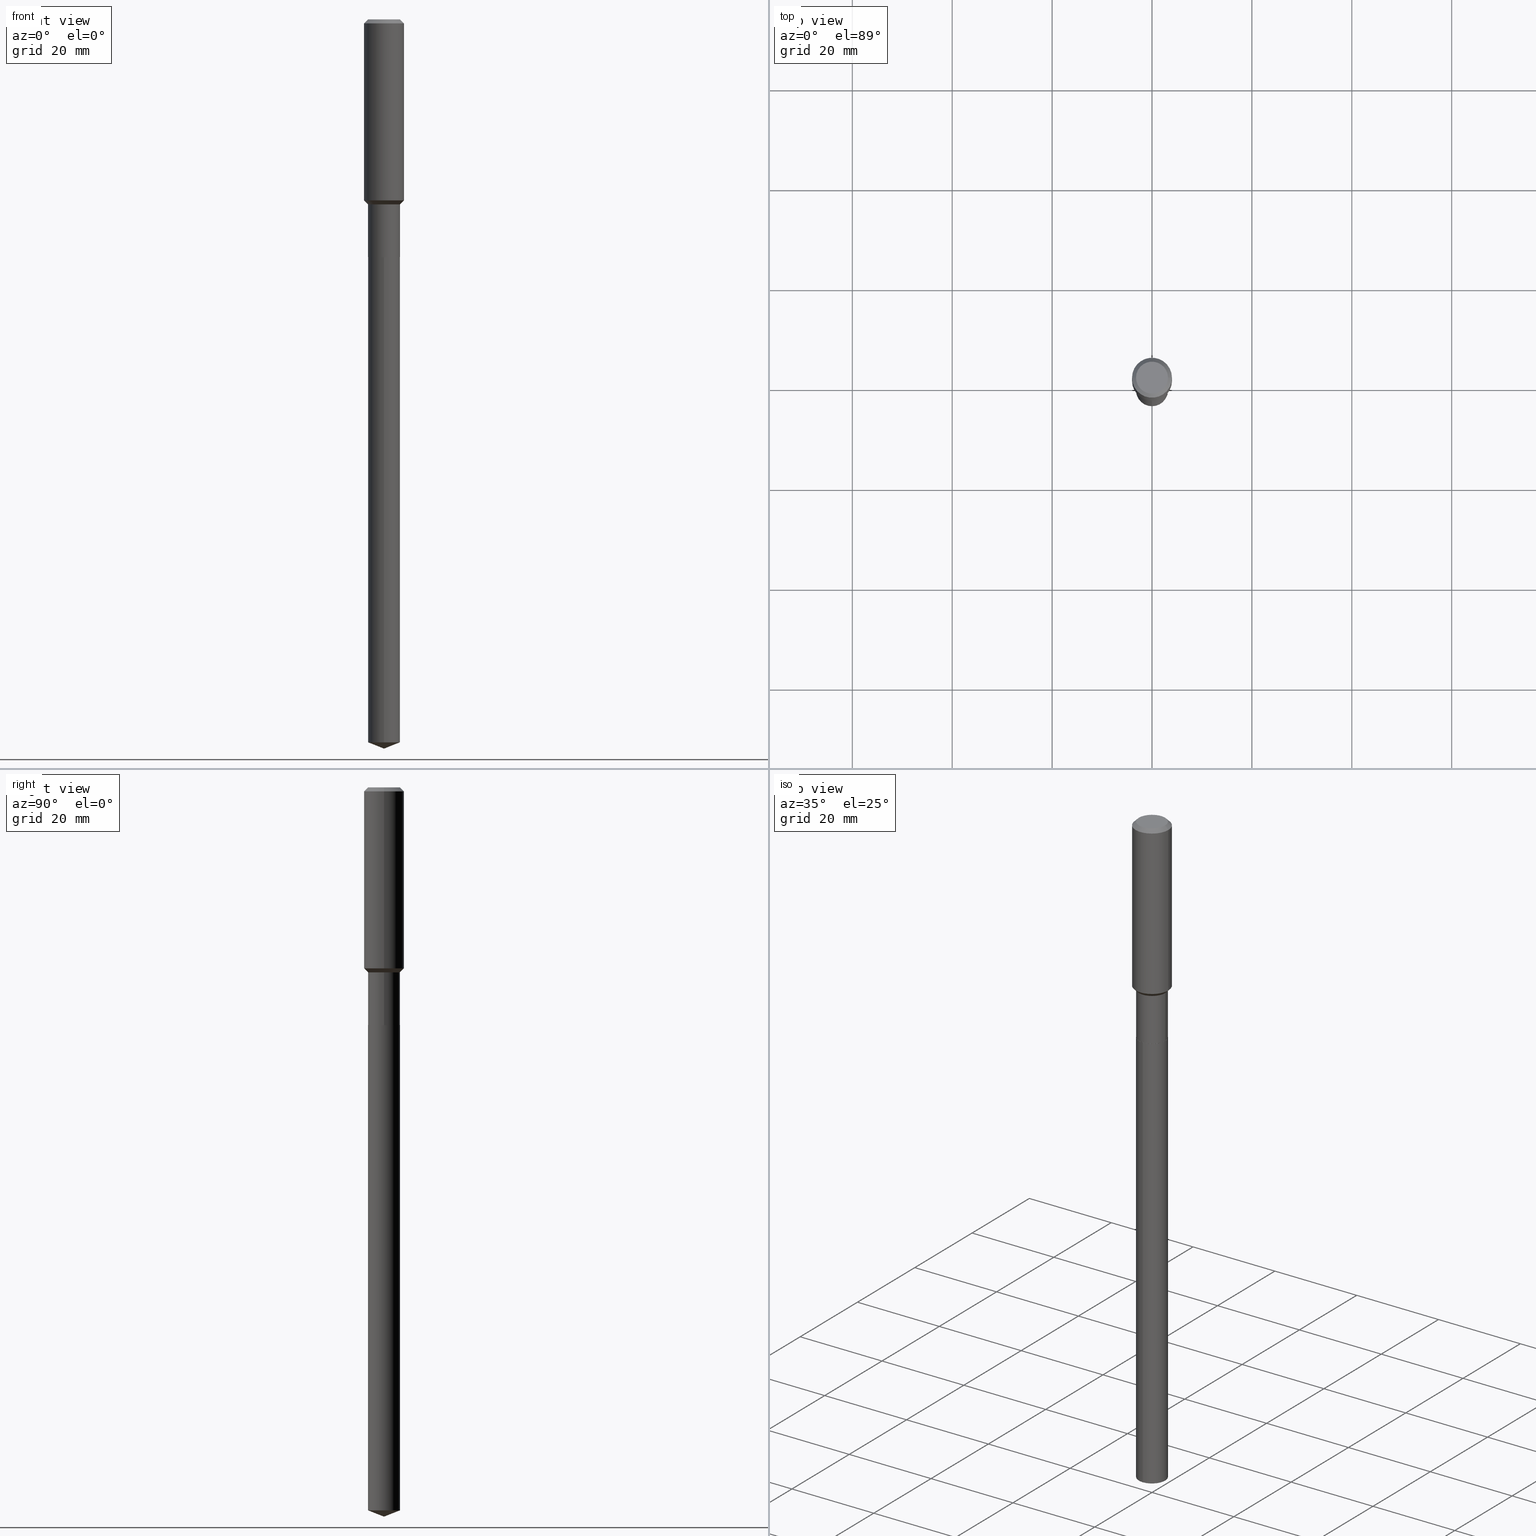
[diagram: canonical four-view strip — front | top / right | iso, engineering-drawing reading convention]
A machine part, canonical four-view strip (front | top / right | iso — engineering-drawing reading convention). The complete STEP part file that produces these views, byte-faithful:
ISO-10303-21;
HEADER;
FILE_DESCRIPTION (( 'STEP AP203' ),
    '1' );
FILE_NAME ('66743.STEP',
    '2024-04-25T05:04:26',
    ( '' ),
    ( '' ),
    'SwSTEP 2.0',
    'SolidWorks 2023',
    '' );
FILE_SCHEMA (( 'CONFIG_CONTROL_DESIGN' ));
ENDSEC;

DATA;
#1 = ORIENTED_EDGE ( 'NONE', *, *, #232, .F. ) ;
#2 = PERSON_AND_ORGANIZATION ( #69, #118 ) ;
#3 = EDGE_CURVE ( 'NONE', #7, #157, #133, .T. ) ;
#4 = CONICAL_SURFACE ( 'NONE', #258, 0.1259999999999999454, 0.7853981633974485010 ) ;
#5 = PERSON_AND_ORGANIZATION ( #69, #118 ) ;
#6 = CC_DESIGN_PERSON_AND_ORGANIZATION_ASSIGNMENT ( #199, #383, ( #179 ) ) ;
#7 = VERTEX_POINT ( 'NONE', #17 ) ;
#8 = SECURITY_CLASSIFICATION_LEVEL ( 'unclassified' ) ;
#9 = EDGE_LOOP ( 'NONE', ( #120, #401, #424, #195 ) ) ;
#10 = VERTEX_POINT ( 'NONE', #439 ) ;
#11 = APPROVAL_ROLE ( '' ) ;
#12 = ORIENTED_EDGE ( 'NONE', *, *, #42, .T. ) ;
#13 = MANIFOLD_SOLID_BREP ( 'Body-Move/Copy2[1]', #435 ) ;
#14 = DIRECTION ( 'NONE',  ( 6.611014441532049234E-15, 0.9304175679820246847, 0.3665012267242964694 ) ) ;
#15 = SHAPE_DEFINITION_REPRESENTATION ( #361, #114 ) ;
#16 = EDGE_CURVE ( 'NONE', #255, #277, #411, .T. ) ;
#17 = CARTESIAN_POINT ( 'NONE',  ( 0.1575000000000001676, -6.081113047863103767E-15, -1.426700000000000079 ) ) ;
#18 = CIRCLE ( 'NONE', #211, 0.1575000000000000011 ) ;
#19 = LINE ( 'NONE', #404, #240 ) ;
#20 = LINE ( 'NONE', #172, #330 ) ;
#21 = DATE_AND_TIME ( #130, #437 ) ;
#22 = DIRECTION ( 'NONE',  ( -0.7071067811865476838, 7.493145998870354160E-15, 0.7071067811865473507 ) ) ;
#23 = DESIGN_CONTEXT ( 'detailed design', #466, 'design' ) ;
#24 = CARTESIAN_POINT ( 'NONE',  ( 0.1255000000000000004, -7.419746993175567135E-15, -1.874100000000000321 ) ) ;
#25 = DIRECTION ( 'NONE',  ( -2.445505131689161553E-29, 3.491429318653862647E-15, 1.000000000000000000 ) ) ;
#26 = DIRECTION ( 'NONE',  ( -2.445468806185136597E-29, 3.491481338843145583E-15, 1.000000000000000000 ) ) ;
#27 = AXIS2_PLACEMENT_3D ( 'NONE', #290, #328, #212 ) ;
#28 = DIRECTION ( 'NONE',  ( -6.982962677686265922E-15, -1.000000000000000000, 4.336266656609941617E-15 ) ) ;
#29 = CARTESIAN_POINT ( 'NONE',  ( -0.1255000000000000004, -5.651654043747015447E-15, -1.874100000000000321 ) ) ;
#30 = DIRECTION ( 'NONE',  ( -6.982962677686265922E-15, -1.000000000000000000, 3.498627837350070092E-15 ) ) ;
#31 = DIRECTION ( 'NONE',  ( -2.445505131689161553E-29, 3.491429318653862647E-15, 1.000000000000000000 ) ) ;
#32 = CC_DESIGN_PERSON_AND_ORGANIZATION_ASSIGNMENT ( #345, #160, ( #304 ) ) ;
#33 = FACE_OUTER_BOUND ( 'NONE', #463, .T. ) ;
#34 = CARTESIAN_POINT ( 'NONE',  ( 1.393531834803985762E-28, -1.989554408113978401E-14, -5.698367280072516472 ) ) ;
#35 = CC_DESIGN_APPROVAL ( #235, ( #477 ) ) ;
#36 = CARTESIAN_POINT ( 'NONE',  ( 0.000000000000000000, 0.000000000000000000, 0.000000000000000000 ) ) ;
#37 = PERSON_AND_ORGANIZATION_ROLE ( 'design_supplier' ) ;
#38 = DIRECTION ( 'NONE',  ( -2.445468806185136597E-29, 3.491481338843145583E-15, 1.000000000000000000 ) ) ;
#39 = ADVANCED_FACE ( 'NONE', ( #402 ), #476, .T. ) ;
#40 = APPROVAL_STATUS ( 'not_yet_approved' ) ;
#41 = ADVANCED_FACE ( 'NONE', ( #57 ), #136, .F. ) ;
#42 = EDGE_CURVE ( 'NONE', #157, #51, #56, .T. ) ;
#43 = CLOSED_SHELL ( 'NONE', ( #156, #106, #145, #210, #87, #39, #227, #181, #376, #41, #124, #356 ) ) ;
#44 = VECTOR ( 'NONE', #378, 39.37007874015748143 ) ;
#45 = EDGE_LOOP ( 'NONE', ( #265, #252, #458, #98 ) ) ;
#46 =( NAMED_UNIT ( * ) SI_UNIT ( $, .STERADIAN. ) SOLID_ANGLE_UNIT ( ) );
#47 = ORIENTED_EDGE ( 'NONE', *, *, #3, .F. ) ;
#48 = COORDINATED_UNIVERSAL_TIME_OFFSET ( 5, 0, .BEHIND. ) ;
#49 = EDGE_LOOP ( 'NONE', ( #317, #62, #394, #348 ) ) ;
#50 = EDGE_CURVE ( 'NONE', #7, #238, #283, .T. ) ;
#51 = VERTEX_POINT ( 'NONE', #406 ) ;
#52 = AXIS2_PLACEMENT_3D ( 'NONE', #375, #152, #263 ) ;
#53 = FACE_OUTER_BOUND ( 'NONE', #293, .T. ) ;
#54 = ORIENTED_EDGE ( 'NONE', *, *, #390, .T. ) ;
#55 = CALENDAR_DATE ( 2024, 25, 4 ) ;
#56 = LINE ( 'NONE', #139, #83 ) ;
#57 = FACE_OUTER_BOUND ( 'NONE', #202, .T. ) ;
#58 = AXIS2_PLACEMENT_3D ( 'NONE', #433, #364, #217 ) ;
#59 = DATE_TIME_ROLE ( 'classification_date' ) ;
#60 = AXIS2_PLACEMENT_3D ( 'NONE', #371, #31, #28 ) ;
#61 = DIRECTION ( 'NONE',  ( 1.000000000000000000, -6.982962677686267499E-15, 0.000000000000000000 ) ) ;
#62 = ORIENTED_EDGE ( 'NONE', *, *, #450, .T. ) ;
#63 = CARTESIAN_POINT ( 'NONE',  ( 3.565982613179166758E-29, -5.091278088301075745E-15, -1.458200000000000385 ) ) ;
#64 = DIRECTION ( 'NONE',  ( 2.445505131689161273E-29, -3.491429318653862647E-15, -1.000000000000000000 ) ) ;
#65 = DIRECTION ( 'NONE',  ( 1.000000000000000000, -6.982962677686262766E-15, 0.000000000000000000 ) ) ;
#66 = CARTESIAN_POINT ( 'NONE',  ( 0.1259999999999999454, -5.971131385689545098E-15, -1.458200000000000385 ) ) ;
#67 = DIRECTION ( 'NONE',  ( -1.000000000000000000, 6.982962677686265922E-15, -4.876176775795935793E-29 ) ) ;
#68 = CARTESIAN_POINT ( 'NONE',  ( 0.1259999999999999454, -5.971131385689545098E-15, -1.458200000000000385 ) ) ;
#69 = PERSON ( 'UNSPECIFIED', 'UNSPECIFIED', 'UNSPECIFIED', ('UNSPECIFIED'), ('UNSPECIFIED'), ('UNSPECIFIED') ) ;
#70 = CARTESIAN_POINT ( 'NONE',  ( 7.703226739483228723E-31, -1.099816621735597661E-16, -0.03150000000000019451 ) ) ;
#71 = EDGE_CURVE ( 'NONE', #159, #357, #125, .T. ) ;
#72 = CYLINDRICAL_SURFACE ( 'NONE', #60, 0.1260000000000000009 ) ;
#73 = APPROVAL ( #305, 'UNSPECIFIED' ) ;
#74 = CARTESIAN_POINT ( 'NONE',  ( -0.1575000000000001676, -3.862191617305357106E-15, -1.426700000000000079 ) ) ;
#75 = CYLINDRICAL_SURFACE ( 'NONE', #189, 0.1260000000000000009 ) ;
#76 = DIRECTION ( 'NONE',  ( 1.000000000000000000, -6.982962677686267499E-15, 4.876176775795936353E-29 ) ) ;
#77 = PERSON_AND_ORGANIZATION_ROLE ( 'design_owner' ) ;
#78 = ORIENTED_EDGE ( 'NONE', *, *, #16, .F. ) ;
#79 = CARTESIAN_POINT ( 'NONE',  ( 0.1259999999999999731, -8.798532973884693531E-16, 6.143982737502877445E-30 ) ) ;
#80 = DIRECTION ( 'NONE',  ( 1.000000000000000000, -6.982962677686265922E-15, 0.000000000000000000 ) ) ;
#81 = EDGE_LOOP ( 'NONE', ( #387, #12, #167, #326 ) ) ;
#82 = CALENDAR_DATE ( 2024, 25, 4 ) ;
#83 = VECTOR ( 'NONE', #359, 39.37007874015748143 ) ;
#84 = AXIS2_PLACEMENT_3D ( 'NONE', #109, #413, #410 ) ;
#85 = ORIENTED_EDGE ( 'NONE', *, *, #422, .F. ) ;
#86 = DATE_TIME_ROLE ( 'creation_date' ) ;
#87 = ADVANCED_FACE ( 'NONE', ( #367 ), #135, .T. ) ;
#88 = VERTEX_POINT ( 'NONE', #370 ) ;
#89 = COORDINATED_UNIVERSAL_TIME_OFFSET ( 5, 0, .BEHIND. ) ;
#90 = ORIENTED_EDGE ( 'NONE', *, *, #192, .T. ) ;
#91 = AXIS2_PLACEMENT_3D ( 'NONE', #366, #64, #377 ) ;
#92 = ORIENTED_EDGE ( 'NONE', *, *, #101, .F. ) ;
#93 = AXIS2_PLACEMENT_3D ( 'NONE', #257, #415, #176 ) ;
#94 = CARTESIAN_POINT ( 'NONE',  ( -4.719860820353100843E-47, 6.738710358733633822E-33, 1.930043355456229866E-18 ) ) ;
#95 = VERTEX_POINT ( 'NONE', #24 ) ;
#96 = EDGE_CURVE ( 'NONE', #234, #51, #20, .T. ) ;
#97 = DIRECTION ( 'NONE',  ( -6.982962677686265922E-15, -1.000000000000000000, 3.498627837350070092E-15 ) ) ;
#98 = ORIENTED_EDGE ( 'NONE', *, *, #71, .F. ) ;
#99 = AXIS2_PLACEMENT_3D ( 'NONE', #251, #432, #97 ) ;
#100 = LOCAL_TIME ( 1, 4, 26.00000000000000000, #158 ) ;
#101 = EDGE_CURVE ( 'NONE', #279, #10, #197, .T. ) ;
#102 = DIRECTION ( 'NONE',  ( -0.7071067811865451302, 2.468850131082231817E-15, -0.7071067811865499042 ) ) ;
#103 = FACE_OUTER_BOUND ( 'NONE', #239, .T. ) ;
#104 = DIRECTION ( 'NONE',  ( 1.000000000000000000, -6.982962677686265922E-15, 4.876176775795935793E-29 ) ) ;
#105 = LINE ( 'NONE', #294, #276 ) ;
#106 = ADVANCED_FACE ( 'NONE', ( #442 ), #360, .T. ) ;
#107 = AXIS2_PLACEMENT_3D ( 'NONE', #409, #26, #104 ) ;
#108 = AXIS2_PLACEMENT_3D ( 'NONE', #175, #288, #177 ) ;
#109 = CARTESIAN_POINT ( 'NONE',  ( 3.565982613179166758E-29, -5.091278088301075745E-15, -1.458200000000000385 ) ) ;
#110 =( GEOMETRIC_REPRESENTATION_CONTEXT ( 3 ) GLOBAL_UNCERTAINTY_ASSIGNED_CONTEXT ( ( #438 ) ) GLOBAL_UNIT_ASSIGNED_CONTEXT ( ( #459, #313, #46 ) ) REPRESENTATION_CONTEXT ( 'NONE', 'WORKASPACE' ) );
#111 = DIRECTION ( 'NONE',  ( 1.000000000000000000, -6.982962677686267499E-15, 0.000000000000000000 ) ) ;
#112 = CARTESIAN_POINT ( 'NONE',  ( 4.583053089671565422E-29, -6.543385177125940789E-15, -1.874100000000000321 ) ) ;
#113 = EDGE_CURVE ( 'NONE', #460, #279, #482, .T. ) ;
#114 = ADVANCED_BREP_SHAPE_REPRESENTATION ( '66743', ( #13, #183, #248 ), #110 ) ;
#115 = DIRECTION ( 'NONE',  ( -2.445468806185136597E-29, 3.491481338843145583E-15, 1.000000000000000000 ) ) ;
#116 = ORIENTED_EDGE ( 'NONE', *, *, #101, .T. ) ;
#117 = AXIS2_PLACEMENT_3D ( 'NONE', #384, #38, #194 ) ;
#118 = ORGANIZATION ( 'UNSPECIFIED', 'UNSPECIFIED', '' ) ;
#119 = DIRECTION ( 'NONE',  ( 1.000000000000000000, -6.982962677686265922E-15, 0.000000000000000000 ) ) ;
#120 = ORIENTED_EDGE ( 'NONE', *, *, #390, .F. ) ;
#121 = ORIENTED_EDGE ( 'NONE', *, *, #233, .F. ) ;
#122 = PERSON_AND_ORGANIZATION_ROLE ( 'creator' ) ;
#123 = ORIENTED_EDGE ( 'NONE', *, *, #344, .F. ) ;
#124 = ADVANCED_FACE ( 'NONE', ( #267 ), #231, .F. ) ;
#125 = CIRCLE ( 'NONE', #27, 0.1259999999999999454 ) ;
#126 = CIRCLE ( 'NONE', #84, 0.1259999999999999454 ) ;
#127 = ORIENTED_EDGE ( 'NONE', *, *, #71, .T. ) ;
#128 = CALENDAR_DATE ( 2024, 25, 4 ) ;
#129 = ORIENTED_EDGE ( 'NONE', *, *, #457, .T. ) ;
#130 = CALENDAR_DATE ( 2024, 25, 4 ) ;
#131 = ADVANCED_FACE ( 'NONE', ( #187 ), #140, .T. ) ;
#132 = ORIENTED_EDGE ( 'NONE', *, *, #441, .F. ) ;
#133 = CIRCLE ( 'NONE', #296, 0.1575000000000001676 ) ;
#134 = ORIENTED_EDGE ( 'NONE', *, *, #96, .T. ) ;
#135 = CYLINDRICAL_SURFACE ( 'NONE', #58, 0.1259999999999999731 ) ;
#136 = PLANE ( 'NONE',  #397 ) ;
#137 = CARTESIAN_POINT ( 'NONE',  ( 1.405662734169511443E-28, -2.006893070569587547E-14, -5.748000000000000220 ) ) ;
#138 = EDGE_CURVE ( 'NONE', #429, #238, #151, .T. ) ;
#139 = CARTESIAN_POINT ( 'NONE',  ( -0.1575000000000000844, 1.119104808822158392E-15, -7.747322767151481189E-30 ) ) ;
#140 = CONICAL_SURFACE ( 'NONE', #453, 99.94676754583808531, 1.195550537616113074 ) ;
#141 = AXIS2_PLACEMENT_3D ( 'NONE', #70, #150, #184 ) ;
#142 = LINE ( 'NONE', #68, #430 ) ;
#143 = CARTESIAN_POINT ( 'NONE',  ( 1.405676469087016136E-28, -2.006873572362240231E-14, -5.748000000000000220 ) ) ;
#144 = CARTESIAN_POINT ( 'NONE',  ( -8.798532973884236978E-16, -0.1260000000000065512, -1.874099999999999655 ) ) ;
#145 = ADVANCED_FACE ( 'NONE', ( #185 ), #336, .T. ) ;
#146 = DIRECTION ( 'NONE',  ( 1.000000000000000000, -6.982962677686267499E-15, 4.876176775795936353E-29 ) ) ;
#147 = LINE ( 'NONE', #29, #44 ) ;
#148 = DIRECTION ( 'NONE',  ( -2.445505131689161553E-29, 3.491429318653862647E-15, 1.000000000000000000 ) ) ;
#149 = CIRCLE ( 'NONE', #488, 0.1260000000000000009 ) ;
#150 = DIRECTION ( 'NONE',  ( 2.445468806185136597E-29, -3.491481338843145583E-15, -1.000000000000000000 ) ) ;
#151 = LINE ( 'NONE', #264, #446 ) ;
#152 = DIRECTION ( 'NONE',  ( -2.445468806185136597E-29, 3.491481338843145583E-15, 1.000000000000000000 ) ) ;
#153 = CARTESIAN_POINT ( 'NONE',  ( 0.000000000000000000, 0.000000000000000000, 0.000000000000000000 ) ) ;
#154 = ORIENTED_EDGE ( 'NONE', *, *, #138, .F. ) ;
#155 = CC_DESIGN_SECURITY_CLASSIFICATION ( #304, ( #179 ) ) ;
#156 = ADVANCED_FACE ( 'NONE', ( #33 ), #236, .T. ) ;
#157 = VERTEX_POINT ( 'NONE', #74 ) ;
#158 = COORDINATED_UNIVERSAL_TIME_OFFSET ( 5, 0, .BEHIND. ) ;
#159 = VERTEX_POINT ( 'NONE', #191 ) ;
#160 = PERSON_AND_ORGANIZATION_ROLE ( 'classification_officer' ) ;
#161 = ORIENTED_EDGE ( 'NONE', *, *, #307, .T. ) ;
#162 = LINE ( 'NONE', #79, #331 ) ;
#163 = AXIS2_PLACEMENT_3D ( 'NONE', #338, #380, #80 ) ;
#164 = APPROVAL_PERSON_ORGANIZATION ( #208, #324, #11 ) ;
#165 = ORIENTED_EDGE ( 'NONE', *, *, #355, .T. ) ;
#166 = ORIENTED_EDGE ( 'NONE', *, *, #319, .F. ) ;
#167 = ORIENTED_EDGE ( 'NONE', *, *, #278, .F. ) ;
#168 = VECTOR ( 'NONE', #254, 39.37007874015748143 ) ;
#169 = ORIENTED_EDGE ( 'NONE', *, *, #457, .F. ) ;
#170 = LOCAL_TIME ( 1, 4, 26.00000000000000000, #89 ) ;
#171 = CARTESIAN_POINT ( 'NONE',  ( 4.583053089671565422E-29, -6.543385177125940789E-15, -1.874100000000000321 ) ) ;
#172 = CARTESIAN_POINT ( 'NONE',  ( -0.1575000000000000011, 9.898349595620272334E-16, -0.03150000000000019451 ) ) ;
#173 = PRODUCT_RELATED_PRODUCT_CATEGORY ( 'detail', '', ( #468 ) ) ;
#174 = CARTESIAN_POINT ( 'NONE',  ( -0.1260000000000000009, -4.921174915321071275E-15, -1.873600000000000154 ) ) ;
#175 = CARTESIAN_POINT ( 'NONE',  ( 7.703226739483228723E-31, -1.099816621735597661E-16, -0.03150000000000019451 ) ) ;
#176 = DIRECTION ( 'NONE',  ( 1.000000000000000000, -6.982962677686265922E-15, 4.876281427513067258E-29 ) ) ;
#177 = DIRECTION ( 'NONE',  ( -1.000000000000000000, 6.982962677686265922E-15, 0.000000000000000000 ) ) ;
#178 = AXIS2_PLACEMENT_3D ( 'NONE', #334, #452, #119 ) ;
#179 = PRODUCT_DEFINITION_FORMATION_WITH_SPECIFIED_SOURCE ( 'ANY', '', #468, .NOT_KNOWN. ) ;
#180 = DIRECTION ( 'NONE',  ( -2.445505131689161553E-29, 3.491429318653862647E-15, 1.000000000000000000 ) ) ;
#181 = ADVANCED_FACE ( 'NONE', ( #420 ), #381, .T. ) ;
#182 = DIRECTION ( 'NONE',  ( 1.000000000000000000, -6.982962677686265922E-15, 4.876176775795935793E-29 ) ) ;
#183 = MANIFOLD_SOLID_BREP ( 'Body-Move/Copy2[2]', #43 ) ;
#184 = DIRECTION ( 'NONE',  ( -1.000000000000000000, 6.982962677686265922E-15, 0.000000000000000000 ) ) ;
#185 = FACE_OUTER_BOUND ( 'NONE', #81, .T. ) ;
#186 = FACE_OUTER_BOUND ( 'NONE', #426, .T. ) ;
#187 = FACE_OUTER_BOUND ( 'NONE', #320, .T. ) ;
#188 = AXIS2_PLACEMENT_3D ( 'NONE', #447, #339, #111 ) ;
#189 = AXIS2_PLACEMENT_3D ( 'NONE', #230, #25, #456 ) ;
#190 = CARTESIAN_POINT ( 'NONE',  ( 4.583053089671565422E-29, -6.543385177125940789E-15, -1.874100000000000321 ) ) ;
#191 = CARTESIAN_POINT ( 'NONE',  ( -0.1259999999999999454, -4.921174915321071275E-15, -1.458200000000000385 ) ) ;
#192 = EDGE_CURVE ( 'NONE', #277, #255, #247, .T. ) ;
#193 = LENGTH_MEASURE_WITH_UNIT ( LENGTH_MEASURE( 0.02539999999999999897 ), #311 );
#194 = DIRECTION ( 'NONE',  ( 1.000000000000000000, -6.982962677686262766E-15, 0.000000000000000000 ) ) ;
#195 = ORIENTED_EDGE ( 'NONE', *, *, #96, .F. ) ;
#196 = APPLICATION_PROTOCOL_DEFINITION ( 'international standard', 'config_control_design', 1994, #466 ) ;
#197 = CIRCLE ( 'NONE', #314, 0.1260000000000000009 ) ;
#198 = ORIENTED_EDGE ( 'NONE', *, *, #344, .T. ) ;
#199 = PERSON_AND_ORGANIZATION ( #69, #118 ) ;
#200 = ORIENTED_EDGE ( 'NONE', *, *, #422, .T. ) ;
#201 = DATE_AND_TIME ( #82, #170 ) ;
#202 = EDGE_LOOP ( 'NONE', ( #421, #54 ) ) ;
#203 = COORDINATED_UNIVERSAL_TIME_OFFSET ( 5, 0, .BEHIND. ) ;
#204 = CIRCLE ( 'NONE', #52, 0.1575000000000001676 ) ;
#205 = ORIENTED_EDGE ( 'NONE', *, *, #113, .T. ) ;
#206 = CC_DESIGN_DATE_AND_TIME_ASSIGNMENT ( #272, #86, ( #477 ) ) ;
#207 = CARTESIAN_POINT ( 'NONE',  ( 7.703226739483228723E-31, -1.099816621735597661E-16, -0.03150000000000019451 ) ) ;
#208 = PERSON_AND_ORGANIZATION ( #69, #118 ) ;
#209 = CARTESIAN_POINT ( 'NONE',  ( 3.488950345784334839E-29, -4.981296426127515498E-15, -1.426700000000000079 ) ) ;
#210 = ADVANCED_FACE ( 'NONE', ( #301 ), #372, .T. ) ;
#211 = AXIS2_PLACEMENT_3D ( 'NONE', #207, #489, #379 ) ;
#212 = DIRECTION ( 'NONE',  ( 1.000000000000000000, -6.982962677686265922E-15, 0.000000000000000000 ) ) ;
#213 = CARTESIAN_POINT ( 'NONE',  ( -0.1260000000000000009, 9.348441284752484904E-16, 3.860086710906114178E-18 ) ) ;
#214 = DIRECTION ( 'NONE',  ( -2.445468806185136597E-29, 3.491481338843145583E-15, 1.000000000000000000 ) ) ;
#215 = ADVANCED_FACE ( 'NONE', ( #461 ), #418, .T. ) ;
#216 = CARTESIAN_POINT ( 'NONE',  ( 0.1255000000000000004, -7.419746993175567135E-15, -1.874100000000000321 ) ) ;
#217 = DIRECTION ( 'NONE',  ( 1.000000000000000000, -6.982962677686265922E-15, 4.876176775795935793E-29 ) ) ;
#218 = ADVANCED_FACE ( 'NONE', ( #473 ), #246, .F. ) ;
#219 = EDGE_CURVE ( 'NONE', #51, #238, #222, .T. ) ;
#220 = FACE_OUTER_BOUND ( 'NONE', #393, .T. ) ;
#221 = DIRECTION ( 'NONE',  ( -2.445468806185136877E-29, 3.491481338843145188E-15, 1.000000000000000000 ) ) ;
#222 = CIRCLE ( 'NONE', #163, 0.1575000000000000011 ) ;
#223 = VECTOR ( 'NONE', #436, 39.37007874015747433 ) ;
#224 = DIRECTION ( 'NONE',  ( -6.982962677686265922E-15, -1.000000000000000000, 0.000000000000000000 ) ) ;
#225 = DIRECTION ( 'NONE',  ( -2.445505131689161553E-29, 3.491429318653862647E-15, 1.000000000000000000 ) ) ;
#226 = CARTESIAN_POINT ( 'NONE',  ( -9.439721640706201686E-47, 1.347742071746726764E-32, 3.860086710912459732E-18 ) ) ;
#227 = ADVANCED_FACE ( 'NONE', ( #53 ), #4, .T. ) ;
#228 = AXIS2_PLACEMENT_3D ( 'NONE', #244, #431, #65 ) ;
#229 = CC_DESIGN_APPROVAL ( #324, ( #304 ) ) ;
#230 = CARTESIAN_POINT ( 'NONE',  ( 4.583053089671564861E-29, -6.543385177125940001E-15, -1.874100000000000099 ) ) ;
#231 = PLANE ( 'NONE',  #303 ) ;
#232 = EDGE_CURVE ( 'NONE', #159, #157, #19, .T. ) ;
#233 = EDGE_CURVE ( 'NONE', #486, #95, #321, .T. ) ;
#234 = VERTEX_POINT ( 'NONE', #213 ) ;
#235 = APPROVAL ( #40, 'UNSPECIFIED' ) ;
#236 = CONICAL_SURFACE ( 'NONE', #188, 0.1255000000000000004, 0.7853981633972775267 ) ;
#237 = ORIENTED_EDGE ( 'NONE', *, *, #368, .T. ) ;
#238 = VERTEX_POINT ( 'NONE', #365 ) ;
#239 = EDGE_LOOP ( 'NONE', ( #169, #312, #350, #78 ) ) ;
#240 = VECTOR ( 'NONE', #22, 39.37007874015748143 ) ;
#241 = APPROVAL_PERSON_ORGANIZATION ( #2, #73, #423 ) ;
#242 = ORIENTED_EDGE ( 'NONE', *, *, #355, .F. ) ;
#243 = EDGE_LOOP ( 'NONE', ( #198, #428, #47, #316 ) ) ;
#244 = CARTESIAN_POINT ( 'NONE',  ( 4.581830355268472060E-29, -6.541639436456518497E-15, -1.873600000000000154 ) ) ;
#245 = DATE_AND_TIME ( #55, #388 ) ;
#246 = PLANE ( 'NONE',  #91 ) ;
#247 = CIRCLE ( 'NONE', #117, 0.1260000000000000009 ) ;
#248 = AXIS2_PLACEMENT_3D ( 'NONE', #153, #419, #427 ) ;
#249 = DIRECTION ( 'NONE',  ( 2.438088387897960049E-29, -3.491481338843145188E-15, -1.000000000000000000 ) ) ;
#250 = LINE ( 'NONE', #216, #266 ) ;
#251 = CARTESIAN_POINT ( 'NONE',  ( -8.222303417473926493E-28, 1.173890139764378288E-13, 33.62207874015748388 ) ) ;
#252 = ORIENTED_EDGE ( 'NONE', *, *, #16, .T. ) ;
#253 = APPLICATION_CONTEXT ( 'configuration controlled 3d designs of mechanical parts and assemblies' ) ;
#254 = DIRECTION ( 'NONE',  ( -2.445468806185136877E-29, 3.491481338843145188E-15, 1.000000000000000000 ) ) ;
#255 = VERTEX_POINT ( 'NONE', #174 ) ;
#256 = CC_DESIGN_PERSON_AND_ORGANIZATION_ASSIGNMENT ( #270, #122, ( #477 ) ) ;
#257 = CARTESIAN_POINT ( 'NONE',  ( -9.439721640706201686E-47, 1.347742071746726764E-32, 3.860086710912459732E-18 ) ) ;
#258 = AXIS2_PLACEMENT_3D ( 'NONE', #63, #362, #472 ) ;
#259 = DIRECTION ( 'NONE',  ( -2.445505131689161553E-29, 3.491429318653862647E-15, 1.000000000000000000 ) ) ;
#260 = FACE_OUTER_BOUND ( 'NONE', #310, .T. ) ;
#261 = DIRECTION ( 'NONE',  ( -2.438088387897960049E-29, 3.491481338843145188E-15, 1.000000000000000000 ) ) ;
#262 = EDGE_LOOP ( 'NONE', ( #354, #161 ) ) ;
#263 = DIRECTION ( 'NONE',  ( 1.000000000000000000, -6.982962677686267499E-15, 0.000000000000000000 ) ) ;
#264 = CARTESIAN_POINT ( 'NONE',  ( 0.1575000000000000011, -1.190510096822576026E-15, -0.03150000000000019451 ) ) ;
#265 = ORIENTED_EDGE ( 'NONE', *, *, #284, .F. ) ;
#266 = VECTOR ( 'NONE', #369, 39.37007874015748143 ) ;
#267 = FACE_OUTER_BOUND ( 'NONE', #271, .T. ) ;
#268 = EDGE_CURVE ( 'NONE', #460, #10, #327, .T. ) ;
#269 = ORIENTED_EDGE ( 'NONE', *, *, #405, .F. ) ;
#270 = PERSON_AND_ORGANIZATION ( #69, #118 ) ;
#271 = EDGE_LOOP ( 'NONE', ( #269, #121 ) ) ;
#272 = DATE_AND_TIME ( #128, #100 ) ;
#273 = EDGE_LOOP ( 'NONE', ( #455, #205, #242 ) ) ;
#274 = APPLICATION_PROTOCOL_DEFINITION ( 'international standard', 'config_control_design', 1994, #253 ) ;
#275 = EDGE_CURVE ( 'NONE', #95, #277, #250, .T. ) ;
#276 = VECTOR ( 'NONE', #259, 39.37007874015748143 ) ;
#277 = VERTEX_POINT ( 'NONE', #399 ) ;
#278 = EDGE_CURVE ( 'NONE', #238, #51, #18, .T. ) ;
#279 = VERTEX_POINT ( 'NONE', #443 ) ;
#280 = ORIENTED_EDGE ( 'NONE', *, *, #319, .T. ) ;
#281 = AXIS2_PLACEMENT_3D ( 'NONE', #112, #329, #440 ) ;
#282 = VERTEX_POINT ( 'NONE', #335 ) ;
#283 = LINE ( 'NONE', #474, #322 ) ;
#284 = EDGE_CURVE ( 'NONE', #255, #159, #408, .T. ) ;
#285 = DIRECTION ( 'NONE',  ( -2.445468806185136597E-29, 3.491481338843145583E-15, 1.000000000000000000 ) ) ;
#286 = DIRECTION ( 'NONE',  ( -2.445505131689161553E-29, 3.491429318653862647E-15, 1.000000000000000000 ) ) ;
#287 = AXIS2_PLACEMENT_3D ( 'NONE', #190, #115, #333 ) ;
#288 = DIRECTION ( 'NONE',  ( 2.445468806185136597E-29, -3.491481338843145583E-15, -1.000000000000000000 ) ) ;
#289 = DIRECTION ( 'NONE',  ( -6.982962677686265922E-15, -1.000000000000000000, 4.336266656609941617E-15 ) ) ;
#290 = CARTESIAN_POINT ( 'NONE',  ( 3.565982613179166758E-29, -5.091278088301075745E-15, -1.458200000000000385 ) ) ;
#291 = CARTESIAN_POINT ( 'NONE',  ( 4.583053089671564861E-29, -6.543385177125940001E-15, -1.874100000000000099 ) ) ;
#292 = DIRECTION ( 'NONE',  ( -2.445468806185136597E-29, 3.491481338843145583E-15, 1.000000000000000000 ) ) ;
#293 = EDGE_LOOP ( 'NONE', ( #1, #127, #237, #391 ) ) ;
#294 = CARTESIAN_POINT ( 'NONE',  ( 8.952838470577719944E-16, 0.1259999999999934506, -1.874100000000000543 ) ) ;
#295 = DIRECTION ( 'NONE',  ( -2.445468806185136597E-29, 3.491481338843145583E-15, 1.000000000000000000 ) ) ;
#296 = AXIS2_PLACEMENT_3D ( 'NONE', #209, #214, #407 ) ;
#297 = AXIS2_PLACEMENT_3D ( 'NONE', #171, #285, #61 ) ;
#298 = DIRECTION ( 'NONE',  ( 1.000000000000000000, -6.982962677686265922E-15, 4.876281427513067258E-29 ) ) ;
#299 = CARTESIAN_POINT ( 'NONE',  ( -0.1259999999999999731, 8.952838470577260433E-16, -6.197858213721179906E-30 ) ) ;
#300 = DATE_AND_TIME ( #351, #398 ) ;
#301 = FACE_OUTER_BOUND ( 'NONE', #243, .T. ) ;
#302 = ORIENTED_EDGE ( 'NONE', *, *, #284, .T. ) ;
#303 = AXIS2_PLACEMENT_3D ( 'NONE', #451, #261, #182 ) ;
#304 = SECURITY_CLASSIFICATION ( '', '', #8 ) ;
#305 = APPROVAL_STATUS ( 'not_yet_approved' ) ;
#306 = CC_DESIGN_PERSON_AND_ORGANIZATION_ASSIGNMENT ( #349, #37, ( #179 ) ) ;
#307 = EDGE_CURVE ( 'NONE', #88, #282, #149, .T. ) ;
#308 = ORIENTED_EDGE ( 'NONE', *, *, #307, .F. ) ;
#309 = DIRECTION ( 'NONE',  ( -2.445468806185136877E-29, 3.491481338843145188E-15, 1.000000000000000000 ) ) ;
#310 = EDGE_LOOP ( 'NONE', ( #165, #280, #132, #85 ) ) ;
#311 =( LENGTH_UNIT ( ) NAMED_UNIT ( * ) SI_UNIT ( $, .METRE. ) );
#312 = ORIENTED_EDGE ( 'NONE', *, *, #233, .T. ) ;
#313 =( NAMED_UNIT ( * ) PLANE_ANGLE_UNIT ( ) SI_UNIT ( $, .RADIAN. ) );
#314 = AXIS2_PLACEMENT_3D ( 'NONE', #332, #286, #434 ) ;
#315 = AXIS2_PLACEMENT_3D ( 'NONE', #226, #479, #298 ) ;
#316 = ORIENTED_EDGE ( 'NONE', *, *, #368, .F. ) ;
#317 = ORIENTED_EDGE ( 'NONE', *, *, #42, .F. ) ;
#318 = EDGE_CURVE ( 'NONE', #234, #429, #481, .T. ) ;
#319 = EDGE_CURVE ( 'NONE', #279, #88, #105, .T. ) ;
#320 = EDGE_LOOP ( 'NONE', ( #352, #470, #92 ) ) ;
#321 = CIRCLE ( 'NONE', #297, 0.1255000000000000004 ) ;
#322 = VECTOR ( 'NONE', #221, 39.37007874015748143 ) ;
#323 = CIRCLE ( 'NONE', #287, 0.1255000000000000004 ) ;
#324 = APPROVAL ( #396, 'UNSPECIFIED' ) ;
#325 = ORIENTED_EDGE ( 'NONE', *, *, #192, .F. ) ;
#326 = ORIENTED_EDGE ( 'NONE', *, *, #50, .F. ) ;
#327 = LINE ( 'NONE', #137, #223 ) ;
#328 = DIRECTION ( 'NONE',  ( -2.445468806185136597E-29, 3.491481338843145583E-15, 1.000000000000000000 ) ) ;
#329 = DIRECTION ( 'NONE',  ( -2.445468806185136597E-29, 3.491481338843145583E-15, 1.000000000000000000 ) ) ;
#330 = VECTOR ( 'NONE', #102, 39.37007874015748143 ) ;
#331 = VECTOR ( 'NONE', #309, 39.37007874015748143 ) ;
#332 = CARTESIAN_POINT ( 'NONE',  ( 1.393531834803985762E-28, -1.989554408113978401E-14, -5.698367280072516472 ) ) ;
#333 = DIRECTION ( 'NONE',  ( 1.000000000000000000, -6.982962677686267499E-15, 0.000000000000000000 ) ) ;
#334 = CARTESIAN_POINT ( 'NONE',  ( 3.565982613179166758E-29, -5.091278088301075745E-15, -1.458200000000000385 ) ) ;
#335 = CARTESIAN_POINT ( 'NONE',  ( -8.798532973884236978E-16, -0.1260000000000065512, -1.874099999999999655 ) ) ;
#336 = CYLINDRICAL_SURFACE ( 'NONE', #403, 0.1575000000000000844 ) ;
#337 = ORIENTED_EDGE ( 'NONE', *, *, #318, .F. ) ;
#338 = CARTESIAN_POINT ( 'NONE',  ( 7.703226739483228723E-31, -1.099816621735597661E-16, -0.03150000000000019451 ) ) ;
#339 = DIRECTION ( 'NONE',  ( -2.445468806185136597E-29, 3.491481338843145583E-15, 1.000000000000000000 ) ) ;
#340 = CC_DESIGN_DATE_AND_TIME_ASSIGNMENT ( #245, #59, ( #304 ) ) ;
#341 = VECTOR ( 'NONE', #14, 39.37007874015748854 ) ;
#342 = VECTOR ( 'NONE', #445, 39.37007874015748143 ) ;
#343 = CARTESIAN_POINT ( 'NONE',  ( 4.583053089671564861E-29, -6.543385177125940001E-15, -1.874100000000000099 ) ) ;
#344 = EDGE_CURVE ( 'NONE', #357, #159, #126, .T. ) ;
#345 = PERSON_AND_ORGANIZATION ( #69, #118 ) ;
#346 = COORDINATED_UNIVERSAL_TIME_OFFSET ( 5, 0, .BEHIND. ) ;
#347 = CC_DESIGN_PERSON_AND_ORGANIZATION_ASSIGNMENT ( #385, #77, ( #468 ) ) ;
#348 = ORIENTED_EDGE ( 'NONE', *, *, #219, .F. ) ;
#349 = PERSON_AND_ORGANIZATION ( #69, #118 ) ;
#350 = ORIENTED_EDGE ( 'NONE', *, *, #275, .T. ) ;
#351 = CALENDAR_DATE ( 2024, 25, 4 ) ;
#352 = ORIENTED_EDGE ( 'NONE', *, *, #113, .F. ) ;
#353 = CONICAL_SURFACE ( 'NONE', #281, 0.1255000000000000004, 0.7853981633972775267 ) ;
#354 = ORIENTED_EDGE ( 'NONE', *, *, #441, .T. ) ;
#355 = EDGE_CURVE ( 'NONE', #10, #279, #412, .T. ) ;
#356 = ADVANCED_FACE ( 'NONE', ( #103 ), #353, .T. ) ;
#357 = VERTEX_POINT ( 'NONE', #66 ) ;
#358 = APPROVAL_DATE_TIME ( #21, #324 ) ;
#359 = DIRECTION ( 'NONE',  ( -2.445468806185136877E-29, 3.491481338843145188E-15, 1.000000000000000000 ) ) ;
#360 = CONICAL_SURFACE ( 'NONE', #108, 0.1575000000000000011, 0.7853981633974449483 ) ;
#361 = PRODUCT_DEFINITION_SHAPE ( 'NONE', 'NONE',  #477 ) ;
#362 = DIRECTION ( 'NONE',  ( -2.445468806185136597E-29, 3.491481338843145583E-15, 1.000000000000000000 ) ) ;
#363 = AXIS2_PLACEMENT_3D ( 'NONE', #34, #449, #224 ) ;
#364 = DIRECTION ( 'NONE',  ( -2.445468806185136597E-29, 3.491481338843145583E-15, 1.000000000000000000 ) ) ;
#365 = CARTESIAN_POINT ( 'NONE',  ( 0.1575000000000000011, -1.209798283909146741E-15, -0.03150000000000019451 ) ) ;
#366 = CARTESIAN_POINT ( 'NONE',  ( 4.583053089671564861E-29, -6.543385177125940001E-15, -1.874100000000000099 ) ) ;
#367 = FACE_OUTER_BOUND ( 'NONE', #416, .T. ) ;
#368 = EDGE_CURVE ( 'NONE', #357, #7, #142, .T. ) ;
#369 = DIRECTION ( 'NONE',  ( 0.7071067811864267805, -2.468850131080992517E-15, 0.7071067811866682540 ) ) ;
#370 = CARTESIAN_POINT ( 'NONE',  ( 8.952838470578662633E-16, 0.1259999999999934783, -1.874100000000000543 ) ) ;
#371 = CARTESIAN_POINT ( 'NONE',  ( 4.583053089671564861E-29, -6.543385177125940001E-15, -1.874100000000000099 ) ) ;
#372 = CONICAL_SURFACE ( 'NONE', #178, 0.1259999999999999454, 0.7853981633974485010 ) ;
#373 = CIRCLE ( 'NONE', #315, 0.1260000000000000009 ) ;
#374 = CARTESIAN_POINT ( 'NONE',  ( 0.000000000000000000, 0.000000000000000000, 0.000000000000000000 ) ) ;
#375 = CARTESIAN_POINT ( 'NONE',  ( 3.488950345784334839E-29, -4.981296426127515498E-15, -1.426700000000000079 ) ) ;
#376 = ADVANCED_FACE ( 'NONE', ( #220 ), #454, .T. ) ;
#377 = DIRECTION ( 'NONE',  ( 6.982962677686265922E-15, 1.000000000000000000, -3.491429318653862647E-15 ) ) ;
#378 = DIRECTION ( 'NONE',  ( -0.7071067811864267805, 7.493145998869918709E-15, 0.7071067811866682540 ) ) ;
#379 = DIRECTION ( 'NONE',  ( 1.000000000000000000, -6.982962677686265922E-15, 0.000000000000000000 ) ) ;
#380 = DIRECTION ( 'NONE',  ( -2.445468806185136597E-29, 3.491481338843145583E-15, 1.000000000000000000 ) ) ;
#381 = CYLINDRICAL_SURFACE ( 'NONE', #462, 0.1575000000000000844 ) ;
#382 = CC_DESIGN_APPROVAL ( #73, ( #179 ) ) ;
#383 = PERSON_AND_ORGANIZATION_ROLE ( 'creator' ) ;
#384 = CARTESIAN_POINT ( 'NONE',  ( 4.581830355268472060E-29, -6.541639436456518497E-15, -1.873600000000000154 ) ) ;
#385 = PERSON_AND_ORGANIZATION ( #69, #118 ) ;
#386 = CARTESIAN_POINT ( 'NONE',  ( -0.1255000000000000004, -5.649004816572903458E-15, -1.874100000000000321 ) ) ;
#387 = ORIENTED_EDGE ( 'NONE', *, *, #3, .T. ) ;
#388 = LOCAL_TIME ( 1, 4, 26.00000000000000000, #48 ) ;
#389 = APPROVAL_DATE_TIME ( #201, #73 ) ;
#390 = EDGE_CURVE ( 'NONE', #429, #234, #373, .T. ) ;
#391 = ORIENTED_EDGE ( 'NONE', *, *, #450, .F. ) ;
#392 = APPROVAL_DATE_TIME ( #300, #235 ) ;
#393 = EDGE_LOOP ( 'NONE', ( #154, #337, #134, #467 ) ) ;
#394 = ORIENTED_EDGE ( 'NONE', *, *, #50, .T. ) ;
#395 = ADVANCED_FACE ( 'NONE', ( #260 ), #72, .T. ) ;
#396 = APPROVAL_STATUS ( 'not_yet_approved' ) ;
#397 = AXIS2_PLACEMENT_3D ( 'NONE', #94, #249, #67 ) ;
#398 = LOCAL_TIME ( 1, 4, 26.00000000000000000, #346 ) ;
#399 = CARTESIAN_POINT ( 'NONE',  ( 0.1260000000000000009, -7.421492733844987850E-15, -1.873600000000000154 ) ) ;
#400 = ORIENTED_EDGE ( 'NONE', *, *, #405, .T. ) ;
#401 = ORIENTED_EDGE ( 'NONE', *, *, #138, .T. ) ;
#402 = FACE_OUTER_BOUND ( 'NONE', #45, .T. ) ;
#403 = AXIS2_PLACEMENT_3D ( 'NONE', #374, #295, #146 ) ;
#404 = CARTESIAN_POINT ( 'NONE',  ( -0.1259999999999999454, -4.195994241243349505E-15, -1.458200000000000385 ) ) ;
#405 = EDGE_CURVE ( 'NONE', #95, #486, #323, .T. ) ;
#406 = CARTESIAN_POINT ( 'NONE',  ( -0.1575000000000000011, -1.426534235328379283E-15, -0.03150000000000019451 ) ) ;
#407 = DIRECTION ( 'NONE',  ( 1.000000000000000000, -6.982962677686267499E-15, 0.000000000000000000 ) ) ;
#408 = LINE ( 'NONE', #299, #168 ) ;
#409 = CARTESIAN_POINT ( 'NONE',  ( 0.000000000000000000, 0.000000000000000000, 0.000000000000000000 ) ) ;
#410 = DIRECTION ( 'NONE',  ( 1.000000000000000000, -6.982962677686265922E-15, 0.000000000000000000 ) ) ;
#411 = CIRCLE ( 'NONE', #228, 0.1260000000000000009 ) ;
#412 = CIRCLE ( 'NONE', #363, 0.1260000000000000009 ) ;
#413 = DIRECTION ( 'NONE',  ( -2.445468806185136597E-29, 3.491481338843145583E-15, 1.000000000000000000 ) ) ;
#414 = DIMENSIONAL_EXPONENTS ( 1.000000000000000000, 0.000000000000000000, 0.000000000000000000, 0.000000000000000000, 0.000000000000000000, 0.000000000000000000, 0.000000000000000000 ) ;
#415 = DIRECTION ( 'NONE',  ( -2.445468806185136597E-29, 3.491481338843145583E-15, 1.000000000000000000 ) ) ;
#416 = EDGE_LOOP ( 'NONE', ( #90, #302, #123, #478 ) ) ;
#417 = CARTESIAN_POINT ( 'NONE',  ( 1.405676349694930073E-28, -2.006873572362240231E-14, -5.748000000000000220 ) ) ;
#418 = CONICAL_SURFACE ( 'NONE', #99, 99.94676754583808531, 1.195550537616113074 ) ;
#419 = DIRECTION ( 'NONE',  ( 0.000000000000000000, 0.000000000000000000, 1.000000000000000000 ) ) ;
#420 = FACE_OUTER_BOUND ( 'NONE', #49, .T. ) ;
#421 = ORIENTED_EDGE ( 'NONE', *, *, #318, .T. ) ;
#422 = EDGE_CURVE ( 'NONE', #10, #282, #483, .T. ) ;
#423 = APPROVAL_ROLE ( '' ) ;
#424 = ORIENTED_EDGE ( 'NONE', *, *, #278, .T. ) ;
#425 = CIRCLE ( 'NONE', #471, 0.1260000000000000009 ) ;
#426 = EDGE_LOOP ( 'NONE', ( #166, #116, #200, #308 ) ) ;
#427 = DIRECTION ( 'NONE',  ( 1.000000000000000000, 0.000000000000000000, 0.000000000000000000 ) ) ;
#428 = ORIENTED_EDGE ( 'NONE', *, *, #232, .T. ) ;
#429 = VERTEX_POINT ( 'NONE', #448 ) ;
#430 = VECTOR ( 'NONE', #487, 39.37007874015748143 ) ;
#431 = DIRECTION ( 'NONE',  ( -2.445468806185136597E-29, 3.491481338843145583E-15, 1.000000000000000000 ) ) ;
#432 = DIRECTION ( 'NONE',  ( -2.445505131689161553E-29, 3.491429318653862647E-15, 1.000000000000000000 ) ) ;
#433 = CARTESIAN_POINT ( 'NONE',  ( 0.000000000000000000, 0.000000000000000000, 0.000000000000000000 ) ) ;
#434 = DIRECTION ( 'NONE',  ( -6.982962677686265922E-15, -1.000000000000000000, 0.000000000000000000 ) ) ;
#435 = CLOSED_SHELL ( 'NONE', ( #395, #215, #131, #475, #218 ) ) ;
#436 = DIRECTION ( 'NONE',  ( -6.497071151882104059E-15, -0.9304175679820223532, 0.3665012267243031308 ) ) ;
#437 = LOCAL_TIME ( 1, 4, 26.00000000000000000, #203 ) ;
#438 = UNCERTAINTY_MEASURE_WITH_UNIT (LENGTH_MEASURE( 1.000000000000000082E-05 ), #459, 'distance_accuracy_value', 'NONE');
#439 = CARTESIAN_POINT ( 'NONE',  ( -8.798532973883302178E-16, -0.1260000000000199016, -5.698367280072516472 ) ) ;
#440 = DIRECTION ( 'NONE',  ( 1.000000000000000000, -6.982962677686267499E-15, 0.000000000000000000 ) ) ;
#441 = EDGE_CURVE ( 'NONE', #282, #88, #425, .T. ) ;
#442 = FACE_OUTER_BOUND ( 'NONE', #9, .T. ) ;
#443 = CARTESIAN_POINT ( 'NONE',  ( 8.952838470578656717E-16, 0.1259999999999801279, -5.698367280072516472 ) ) ;
#444 = DIRECTION ( 'NONE',  ( 0.7071067811865451302, -7.319954787623248157E-15, -0.7071067811865499042 ) ) ;
#445 = DIRECTION ( 'NONE',  ( -2.445505131689161553E-29, 3.491429318653862647E-15, 1.000000000000000000 ) ) ;
#446 = VECTOR ( 'NONE', #444, 39.37007874015748143 ) ;
#447 = CARTESIAN_POINT ( 'NONE',  ( 4.583053089671565422E-29, -6.543385177125940789E-15, -1.874100000000000321 ) ) ;
#448 = CARTESIAN_POINT ( 'NONE',  ( 0.1260000000000000009, -1.027466422270894443E-15, 3.860086710919128072E-18 ) ) ;
#449 = DIRECTION ( 'NONE',  ( -2.445505131689161553E-29, 3.491429318653862647E-15, 1.000000000000000000 ) ) ;
#450 = EDGE_CURVE ( 'NONE', #157, #7, #204, .T. ) ;
#451 = CARTESIAN_POINT ( 'NONE',  ( 1.734362465304407499E-29, -1.062287228862091669E-14, -1.874100000000000099 ) ) ;
#452 = DIRECTION ( 'NONE',  ( -2.445468806185136597E-29, 3.491481338843145583E-15, 1.000000000000000000 ) ) ;
#453 = AXIS2_PLACEMENT_3D ( 'NONE', #485, #148, #30 ) ;
#454 = CONICAL_SURFACE ( 'NONE', #141, 0.1575000000000000011, 0.7853981633974449483 ) ;
#455 = ORIENTED_EDGE ( 'NONE', *, *, #268, .F. ) ;
#456 = DIRECTION ( 'NONE',  ( -6.982962677686265922E-15, -1.000000000000000000, 4.336266656609941617E-15 ) ) ;
#457 = EDGE_CURVE ( 'NONE', #486, #255, #147, .T. ) ;
#458 = ORIENTED_EDGE ( 'NONE', *, *, #480, .T. ) ;
#459 =( CONVERSION_BASED_UNIT ( 'INCH', #193 ) LENGTH_UNIT ( ) NAMED_UNIT ( #414 ) );
#460 = VERTEX_POINT ( 'NONE', #417 ) ;
#461 = FACE_OUTER_BOUND ( 'NONE', #273, .T. ) ;
#462 = AXIS2_PLACEMENT_3D ( 'NONE', #36, #292, #76 ) ;
#463 = EDGE_LOOP ( 'NONE', ( #400, #129, #325, #469 ) ) ;
#464 = APPROVAL_PERSON_ORGANIZATION ( #5, #235, #490 ) ;
#465 = MECHANICAL_CONTEXT ( 'NONE', #253, 'mechanical' ) ;
#466 = APPLICATION_CONTEXT ( 'configuration controlled 3d designs of mechanical parts and assemblies' ) ;
#467 = ORIENTED_EDGE ( 'NONE', *, *, #219, .T. ) ;
#468 = PRODUCT ( '66743', '66743', '', ( #465 ) ) ;
#469 = ORIENTED_EDGE ( 'NONE', *, *, #275, .F. ) ;
#470 = ORIENTED_EDGE ( 'NONE', *, *, #268, .T. ) ;
#471 = AXIS2_PLACEMENT_3D ( 'NONE', #343, #225, #484 ) ;
#472 = DIRECTION ( 'NONE',  ( 1.000000000000000000, -6.982962677686265922E-15, 0.000000000000000000 ) ) ;
#473 = FACE_OUTER_BOUND ( 'NONE', #262, .T. ) ;
#474 = CARTESIAN_POINT ( 'NONE',  ( 0.1575000000000000844, -1.099816621735587677E-15, 7.679978421878603638E-30 ) ) ;
#475 = ADVANCED_FACE ( 'NONE', ( #186 ), #75, .T. ) ;
#476 = CYLINDRICAL_SURFACE ( 'NONE', #107, 0.1259999999999999731 ) ;
#477 = PRODUCT_DEFINITION ( 'UNKNOWN', '', #179, #23 ) ;
#478 = ORIENTED_EDGE ( 'NONE', *, *, #480, .F. ) ;
#479 = DIRECTION ( 'NONE',  ( -2.445468806185136597E-29, 3.491481338843145583E-15, 1.000000000000000000 ) ) ;
#480 = EDGE_CURVE ( 'NONE', #277, #357, #162, .T. ) ;
#481 = CIRCLE ( 'NONE', #93, 0.1260000000000000009 ) ;
#482 = LINE ( 'NONE', #143, #341 ) ;
#483 = LINE ( 'NONE', #144, #342 ) ;
#484 = DIRECTION ( 'NONE',  ( -6.982962677686265922E-15, -1.000000000000000000, 4.336266656609941617E-15 ) ) ;
#485 = CARTESIAN_POINT ( 'NONE',  ( -8.222303417473926493E-28, 1.173890139764378288E-13, 33.62207874015748388 ) ) ;
#486 = VERTEX_POINT ( 'NONE', #386 ) ;
#487 = DIRECTION ( 'NONE',  ( 0.7071067811865476838, -2.468850131082258638E-15, 0.7071067811865473507 ) ) ;
#488 = AXIS2_PLACEMENT_3D ( 'NONE', #291, #180, #289 ) ;
#489 = DIRECTION ( 'NONE',  ( -2.445468806185136597E-29, 3.491481338843145583E-15, 1.000000000000000000 ) ) ;
#490 = APPROVAL_ROLE ( '' ) ;
ENDSEC;
END-ISO-10303-21;
